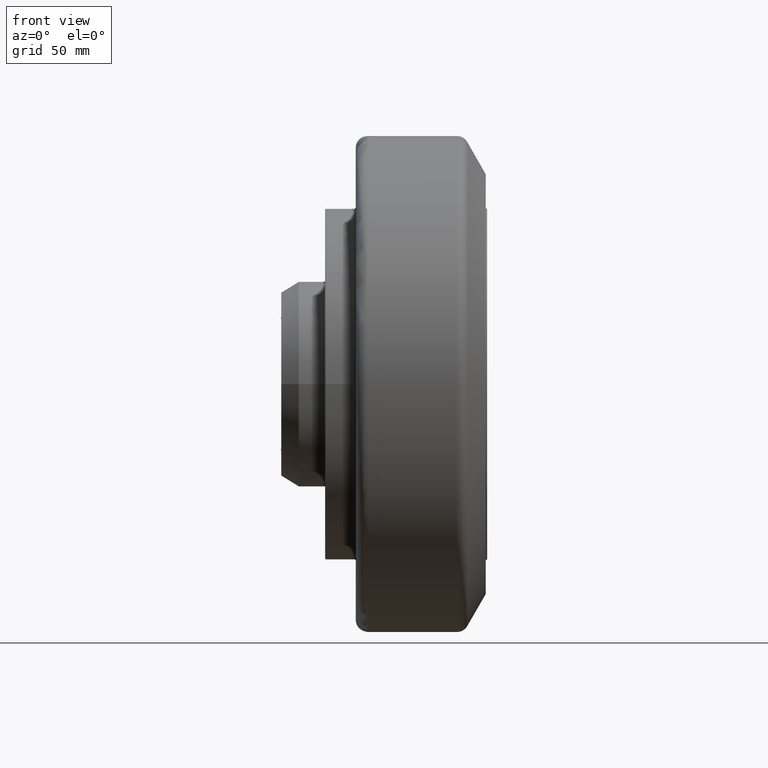
[diagram: clean part render]
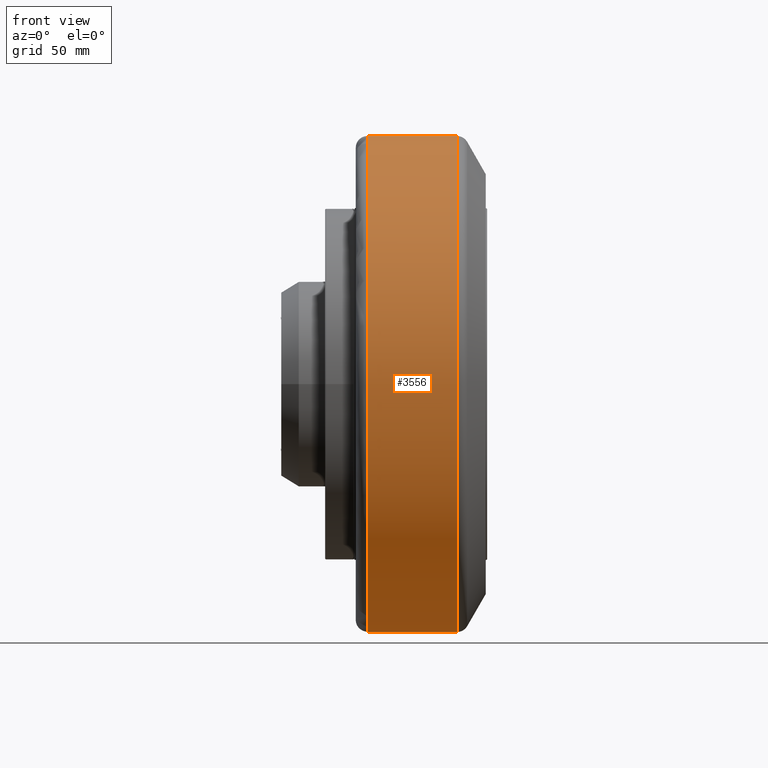
[diagram: same view with one face highlighted and labeled with its STEP entity id]
A machine part, front view. The second image highlights one B-rep face of the part: STEP entity #3556.
In plain terms, the highlighted cylindrical surface (bore or boss wall) has radius 170 mm, axis along (1, 0, 0).
Its self-contained STEP definition (entity closure, byte-faithful):
#25=CYLINDRICAL_SURFACE('',#3883,170.);
#211=CIRCLE('',#3879,170.);
#212=CIRCLE('',#3880,170.);
#213=CIRCLE('',#3881,170.);
#215=CIRCLE('',#3884,170.);
#216=CIRCLE('',#3885,170.);
#217=CIRCLE('',#3886,170.);
#489=FACE_OUTER_BOUND('',#694,.T.);
#694=EDGE_LOOP('',(#2663,#2664,#2665,#2666,#2667,#2668,#2669,#2670));
#900=LINE('',#5838,#1077);
#1077=VECTOR('',#4611,170.);
#1461=VERTEX_POINT('',#5828);
#1462=VERTEX_POINT('',#5830);
#1463=VERTEX_POINT('',#5832);
#1464=VERTEX_POINT('',#5837);
#1465=VERTEX_POINT('',#5839);
#1466=VERTEX_POINT('',#5841);
#1906=EDGE_CURVE('',#1461,#1462,#211,.T.);
#1907=EDGE_CURVE('',#1462,#1463,#212,.T.);
#1908=EDGE_CURVE('',#1463,#1461,#213,.T.);
#1910=EDGE_CURVE('',#1462,#1464,#900,.T.);
#1911=EDGE_CURVE('',#1465,#1464,#215,.T.);
#1912=EDGE_CURVE('',#1466,#1465,#216,.T.);
#1913=EDGE_CURVE('',#1464,#1466,#217,.T.);
#2663=ORIENTED_EDGE('',*,*,#1908,.F.);
#2664=ORIENTED_EDGE('',*,*,#1907,.F.);
#2665=ORIENTED_EDGE('',*,*,#1910,.T.);
#2666=ORIENTED_EDGE('',*,*,#1911,.F.);
#2667=ORIENTED_EDGE('',*,*,#1912,.F.);
#2668=ORIENTED_EDGE('',*,*,#1913,.F.);
#2669=ORIENTED_EDGE('',*,*,#1910,.F.);
#2670=ORIENTED_EDGE('',*,*,#1906,.F.);
#3556=ADVANCED_FACE('',(#489),#25,.T.);
#3879=AXIS2_PLACEMENT_3D('',#5831,#4601,#4602);
#3880=AXIS2_PLACEMENT_3D('',#5833,#4603,#4604);
#3881=AXIS2_PLACEMENT_3D('',#5834,#4605,#4606);
#3883=AXIS2_PLACEMENT_3D('',#5836,#4609,#4610);
#3884=AXIS2_PLACEMENT_3D('',#5840,#4612,#4613);
#3885=AXIS2_PLACEMENT_3D('',#5842,#4614,#4615);
#3886=AXIS2_PLACEMENT_3D('',#5843,#4616,#4617);
#4601=DIRECTION('center_axis',(1.,2.13376427274458E-16,1.38050658413677E-30));
#4602=DIRECTION('ref_axis',(8.22957985459046E-17,-0.382683432365089,0.923879532511287));
#4603=DIRECTION('center_axis',(1.,2.13376427274458E-16,1.38050658413677E-30));
#4604=DIRECTION('ref_axis',(8.22957985459046E-17,-0.382683432365089,0.923879532511287));
#4605=DIRECTION('center_axis',(1.,2.13376427274458E-16,1.38050658413677E-30));
#4606=DIRECTION('ref_axis',(8.22957985459046E-17,-0.382683432365089,0.923879532511287));
#4609=DIRECTION('center_axis',(1.,2.13376427274458E-16,1.38050658413677E-30));
#4610=DIRECTION('ref_axis',(-7.23036561126084E-17,0.382683432365089,-0.923879532511287));
#4611=DIRECTION('',(-1.,-2.13376427274458E-16,-1.38050658413677E-30));
#4612=DIRECTION('center_axis',(-1.,-2.13376427274458E-16,-1.38050658413677E-30));
#4613=DIRECTION('ref_axis',(8.22957985459042E-17,-0.382683432365089,0.923879532511287));
#4614=DIRECTION('center_axis',(-1.,-2.13376427274458E-16,-1.38050658413677E-30));
#4615=DIRECTION('ref_axis',(8.22957985459042E-17,-0.382683432365089,0.923879532511287));
#4616=DIRECTION('center_axis',(-1.,-2.13376427274458E-16,-1.38050658413677E-30));
#4617=DIRECTION('ref_axis',(8.22957985459042E-17,-0.382683432365089,0.923879532511287));
#5828=CARTESIAN_POINT('',(-1.37938505639504,75.8993747833456,35.4060602196172));
#5830=CARTESIAN_POINT('',(-1.379385056395,-146.216329245638,127.409397244471));
#5831=CARTESIAN_POINT('Origin',(-1.37938505639501,-81.1601457435732,-29.650123282448));
#5832=CARTESIAN_POINT('',(-1.37938505639502,-16.103962241508,-186.709643809367));
#5833=CARTESIAN_POINT('Origin',(-1.37938505639501,-81.1601457435732,-29.650123282448));
#5834=CARTESIAN_POINT('Origin',(-1.37938505639501,-81.1601457435732,-29.650123282448));
#5836=CARTESIAN_POINT('Origin',(-33.7550294034128,-81.1601457435732,-29.650123282448));
#5837=CARTESIAN_POINT('',(-62.7494759039477,-146.216329245638,127.409397244471));
#5838=CARTESIAN_POINT('',(-33.7550294034128,-146.216329245638,127.409397244471));
#5839=CARTESIAN_POINT('',(-62.7494759039477,-16.1039622415081,-186.709643809367));
#5840=CARTESIAN_POINT('Origin',(-62.7494759039477,-81.1601457435732,-29.650123282448));
#5841=CARTESIAN_POINT('',(-62.7494759039477,75.8993747833456,35.4060602196172));
#5842=CARTESIAN_POINT('Origin',(-62.7494759039477,-81.1601457435732,-29.650123282448));
#5843=CARTESIAN_POINT('Origin',(-62.7494759039477,-81.1601457435732,-29.650123282448));